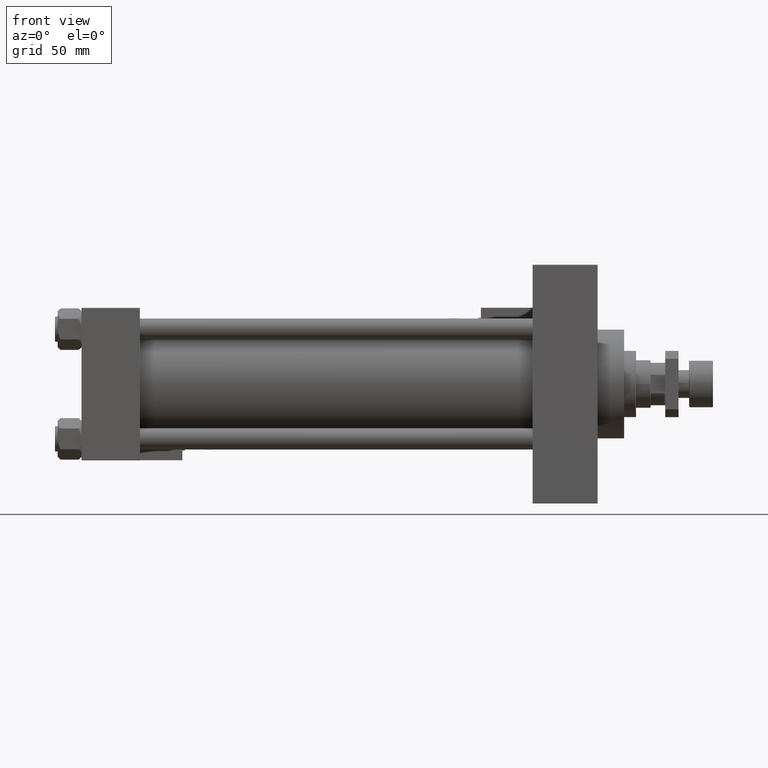
[diagram: clean part render]
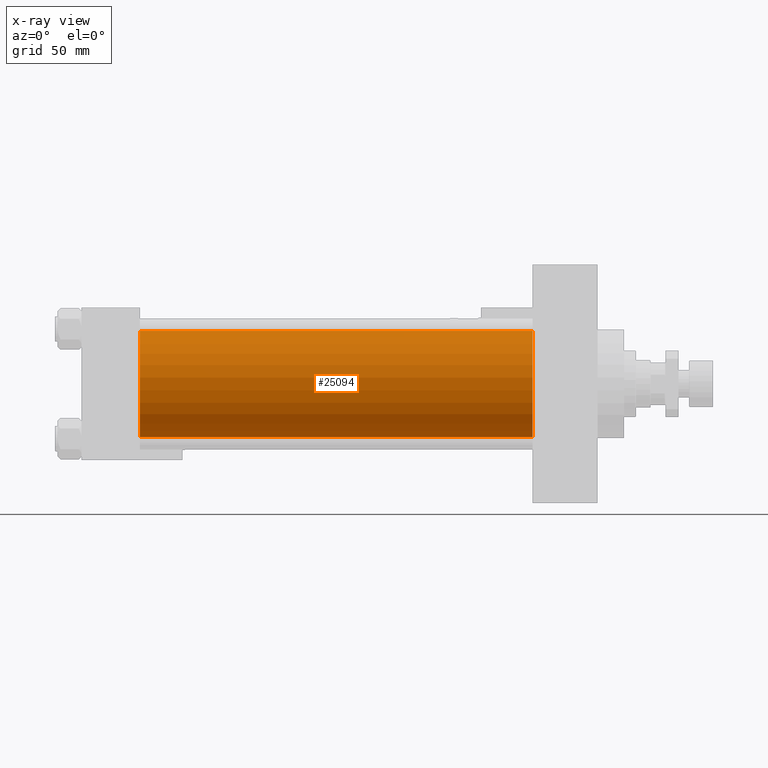
[diagram: x-ray — body ghosted, one internal face saturated and labeled with its STEP entity id]
A machine part, front view, then the same camera in x-ray: the body is ghosted and one INTERNAL B-rep face — a face not visible from any outside direction — is saturated and labeled: STEP entity #25094.
In plain terms, the highlighted cylindrical surface (partial cylindrical patch) has radius 40 mm, axis along (-1, -0, -0).
Its self-contained STEP definition (entity closure, byte-faithful):
#2958 = CARTESIAN_POINT ( 'NONE',  ( 44.00000000000000000, -2.602085213965210642E-15, 40.00000000000000000 ) ) ;
#8413 = VERTEX_POINT ( 'NONE', #44100 ) ;
#8444 = CARTESIAN_POINT ( 'NONE',  ( 339.9999999999999432, -2.602085213965210642E-15, 40.00000000000000000 ) ) ;
#9074 = DIRECTION ( 'NONE',  ( -1.000000000000000000, -0.000000000000000000, -0.000000000000000000 ) ) ;
#9081 = EDGE_LOOP ( 'NONE', ( #14089, #37191, #28129, #30501 ) ) ;
#10493 = EDGE_CURVE ( 'NONE', #34965, #11670, #37906, .T. ) ;
#11564 = AXIS2_PLACEMENT_3D ( 'NONE', #32406, #49018, #23720 ) ;
#11670 = VERTEX_POINT ( 'NONE', #2958 ) ;
#11776 = DIRECTION ( 'NONE',  ( 0.000000000000000000, 0.000000000000000000, -1.000000000000000000 ) ) ;
#12041 = DIRECTION ( 'NONE',  ( 1.000000000000000000, 0.000000000000000000, 0.000000000000000000 ) ) ;
#12884 = CARTESIAN_POINT ( 'NONE',  ( 339.9999999999999432, -2.602085213965210642E-15, 40.00000000000000000 ) ) ;
#14089 = ORIENTED_EDGE ( 'NONE', *, *, #21788, .T. ) ;
#15805 = CYLINDRICAL_SURFACE ( 'NONE', #11564, 40.00000000000000000 ) ;
#17937 = DIRECTION ( 'NONE',  ( -1.000000000000000000, -0.000000000000000000, -0.000000000000000000 ) ) ;
#21788 = EDGE_CURVE ( 'NONE', #34965, #8413, #27958, .T. ) ;
#23720 = DIRECTION ( 'NONE',  ( 0.000000000000000000, 0.000000000000000000, 1.000000000000000000 ) ) ;
#25094 = ADVANCED_FACE ( 'NONE', ( #53084 ), #15805, .F. ) ;
#27958 = CIRCLE ( 'NONE', #34922, 40.00000000000000000 ) ;
#28129 = ORIENTED_EDGE ( 'NONE', *, *, #29949, .F. ) ;
#29949 = EDGE_CURVE ( 'NONE', #11670, #38566, #42194, .T. ) ;
#30501 = ORIENTED_EDGE ( 'NONE', *, *, #10493, .F. ) ;
#32406 = CARTESIAN_POINT ( 'NONE',  ( 339.9999999999999432, -2.602085213965210642E-15, 0.000000000000000000 ) ) ;
#32501 = CARTESIAN_POINT ( 'NONE',  ( 339.9999999999999432, -2.602085213965210642E-15, 0.000000000000000000 ) ) ;
#33041 = DIRECTION ( 'NONE',  ( 0.000000000000000000, 0.000000000000000000, -1.000000000000000000 ) ) ;
#34922 = AXIS2_PLACEMENT_3D ( 'NONE', #32501, #49105, #33041 ) ;
#34965 = VERTEX_POINT ( 'NONE', #8444 ) ;
#35421 = VECTOR ( 'NONE', #9074, 1000.000000000000000 ) ;
#37074 = CARTESIAN_POINT ( 'NONE',  ( 44.00000000000000000, -2.602085213965210642E-15, 0.000000000000000000 ) ) ;
#37191 = ORIENTED_EDGE ( 'NONE', *, *, #40287, .T. ) ;
#37906 = LINE ( 'NONE', #12884, #35421 ) ;
#38566 = VERTEX_POINT ( 'NONE', #50334 ) ;
#38699 = AXIS2_PLACEMENT_3D ( 'NONE', #37074, #12041, #11776 ) ;
#40287 = EDGE_CURVE ( 'NONE', #8413, #38566, #47040, .T. ) ;
#42194 = CIRCLE ( 'NONE', #38699, 40.00000000000000000 ) ;
#42431 = CARTESIAN_POINT ( 'NONE',  ( 339.9999999999999432, 2.296501982624201990E-15, -40.00000000000000000 ) ) ;
#44100 = CARTESIAN_POINT ( 'NONE',  ( 339.9999999999999432, 2.296501982624201990E-15, -40.00000000000000000 ) ) ;
#47040 = LINE ( 'NONE', #42431, #49788 ) ;
#49018 = DIRECTION ( 'NONE',  ( -1.000000000000000000, -0.000000000000000000, -0.000000000000000000 ) ) ;
#49105 = DIRECTION ( 'NONE',  ( 1.000000000000000000, 0.000000000000000000, 0.000000000000000000 ) ) ;
#49788 = VECTOR ( 'NONE', #17937, 1000.000000000000000 ) ;
#50334 = CARTESIAN_POINT ( 'NONE',  ( 44.00000000000000000, 2.296501982624201990E-15, -40.00000000000000000 ) ) ;
#53084 = FACE_OUTER_BOUND ( 'NONE', #9081, .T. ) ;